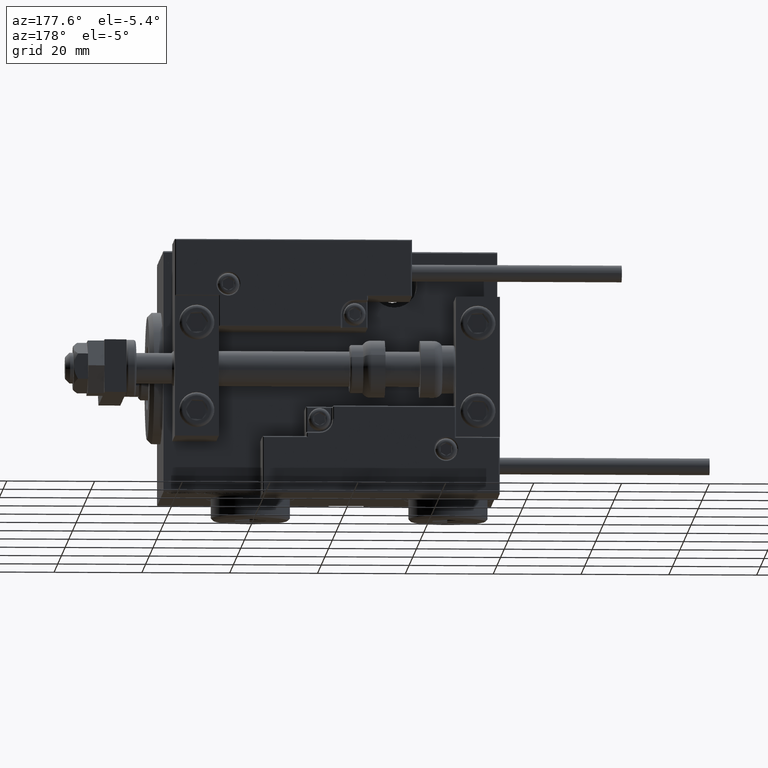
[diagram: clean part render]
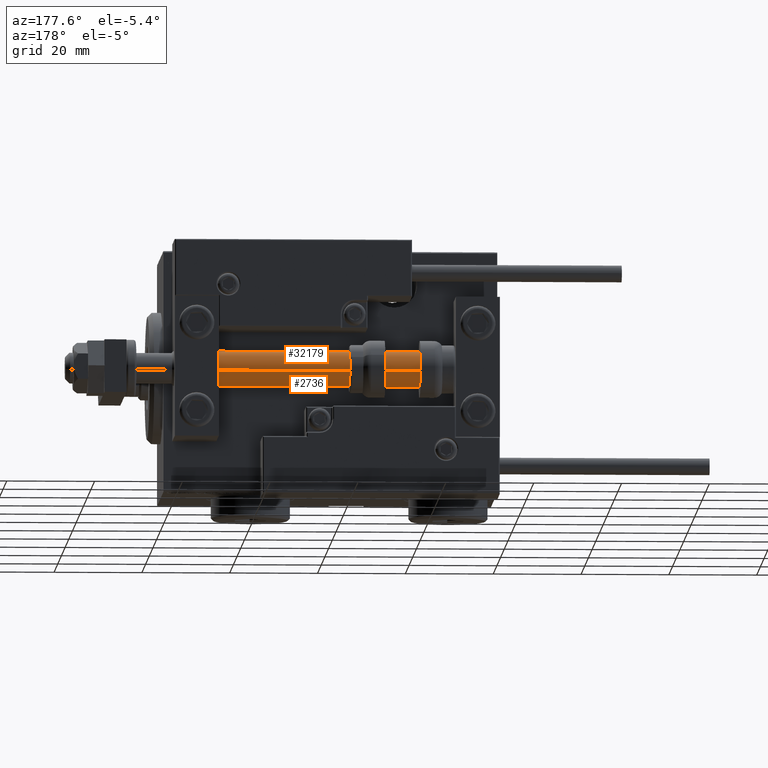
[diagram: same view with one multi-face feature highlighted, each face labeled with its STEP entity id]
A machine part, auxiliary view. The highlighted faces form ONE feature: a constant-radius fillet chain: 2 tangent blend faces with common blend radius 4 mm. The faces share edges in the B-rep.
Their STEP definitions:
[1] entity #2736 (Cylinder):
#1727 = CARTESIAN_POINT ( 'NONE',  ( -4.000000000000000000, 0.000000000000000000, 2.000000000000029310 ) ) ;
#1977 = AXIS2_PLACEMENT_3D ( 'NONE', #37388, #17371, #21786 ) ;
#2736 = ADVANCED_FACE ( 'NONE', ( #32961 ), #44948, .T. ) ;
#4570 = LINE ( 'NONE', #44360, #45676 ) ;
#5890 = DIRECTION ( 'NONE',  ( 1.000000000000000000, 0.000000000000000000, 0.000000000000000000 ) ) ;
#7138 = EDGE_CURVE ( 'NONE', #17571, #49747, #49750, .T. ) ;
#7779 = CIRCLE ( 'NONE', #14421, 4.000000000000000000 ) ;
#12201 = DIRECTION ( 'NONE',  ( 0.000000000000000000, 0.000000000000000000, 1.000000000000000000 ) ) ;
#13492 = AXIS2_PLACEMENT_3D ( 'NONE', #21497, #25668, #5890 ) ;
#14421 = AXIS2_PLACEMENT_3D ( 'NONE', #37994, #12201, #16099 ) ;
#16099 = DIRECTION ( 'NONE',  ( 1.000000000000000000, 0.000000000000000000, 0.000000000000000000 ) ) ;
#17371 = DIRECTION ( 'NONE',  ( -0.000000000000000000, -0.000000000000000000, -1.000000000000000000 ) ) ;
#17571 = VERTEX_POINT ( 'NONE', #22757 ) ;
#21497 = CARTESIAN_POINT ( 'NONE',  ( 0.000000000000000000, 0.000000000000000000, 2.000000000000029310 ) ) ;
#21631 = EDGE_CURVE ( 'NONE', #41066, #30974, #4570, .T. ) ;
#21786 = DIRECTION ( 'NONE',  ( -1.000000000000000000, 0.000000000000000000, 0.000000000000000000 ) ) ;
#22757 = CARTESIAN_POINT ( 'NONE',  ( -4.000000000000000000, 0.000000000000000000, 76.00000000000000000 ) ) ;
#25668 = DIRECTION ( 'NONE',  ( -0.000000000000000000, -0.000000000000000000, 1.000000000000000000 ) ) ;
#26300 = ORIENTED_EDGE ( 'NONE', *, *, #7138, .F. ) ;
#28530 = EDGE_CURVE ( 'NONE', #30974, #49747, #35931, .T. ) ;
#29739 = ORIENTED_EDGE ( 'NONE', *, *, #28530, .T. ) ;
#30216 = VECTOR ( 'NONE', #42440, 1000.000000000000000 ) ;
#30974 = VERTEX_POINT ( 'NONE', #38150 ) ;
#32961 = FACE_OUTER_BOUND ( 'NONE', #40140, .T. ) ;
#33865 = ORIENTED_EDGE ( 'NONE', *, *, #21631, .T. ) ;
#35101 = CARTESIAN_POINT ( 'NONE',  ( 4.000000000000000000, 4.898587196589412829E-16, 76.00000000000000000 ) ) ;
#35931 = CIRCLE ( 'NONE', #13492, 4.000000000000000000 ) ;
#36493 = ORIENTED_EDGE ( 'NONE', *, *, #48416, .F. ) ;
#37388 = CARTESIAN_POINT ( 'NONE',  ( 0.000000000000000000, 0.000000000000000000, 76.00000000000000000 ) ) ;
#37994 = CARTESIAN_POINT ( 'NONE',  ( 0.000000000000000000, 0.000000000000000000, 76.00000000000000000 ) ) ;
#38150 = CARTESIAN_POINT ( 'NONE',  ( 4.000000000000000000, 4.898587196589412829E-16, 2.000000000000029310 ) ) ;
#39173 = DIRECTION ( 'NONE',  ( -0.000000000000000000, -0.000000000000000000, -1.000000000000000000 ) ) ;
#40140 = EDGE_LOOP ( 'NONE', ( #36493, #33865, #29739, #26300 ) ) ;
#41066 = VERTEX_POINT ( 'NONE', #35101 ) ;
#41416 = CARTESIAN_POINT ( 'NONE',  ( -4.000000000000000000, 0.000000000000000000, 76.00000000000000000 ) ) ;
#42440 = DIRECTION ( 'NONE',  ( -0.000000000000000000, -0.000000000000000000, -1.000000000000000000 ) ) ;
#44360 = CARTESIAN_POINT ( 'NONE',  ( 4.000000000000000000, 4.898587196589412829E-16, 76.00000000000000000 ) ) ;
#44948 = CYLINDRICAL_SURFACE ( 'NONE', #1977, 4.000000000000000000 ) ;
#45676 = VECTOR ( 'NONE', #39173, 1000.000000000000000 ) ;
#48416 = EDGE_CURVE ( 'NONE', #41066, #17571, #7779, .T. ) ;
#49747 = VERTEX_POINT ( 'NONE', #1727 ) ;
#49750 = LINE ( 'NONE', #41416, #30216 ) ;
[2] entity #32179 (Cylinder):
#399 = EDGE_CURVE ( 'NONE', #17571, #41066, #8535, .T. ) ;
#1727 = CARTESIAN_POINT ( 'NONE',  ( -4.000000000000000000, 0.000000000000000000, 2.000000000000029310 ) ) ;
#2732 = AXIS2_PLACEMENT_3D ( 'NONE', #16683, #25277, #36459 ) ;
#4570 = LINE ( 'NONE', #44360, #45676 ) ;
#5573 = ORIENTED_EDGE ( 'NONE', *, *, #21631, .F. ) ;
#5592 = DIRECTION ( 'NONE',  ( -0.000000000000000000, -0.000000000000000000, -1.000000000000000000 ) ) ;
#7138 = EDGE_CURVE ( 'NONE', #17571, #49747, #49750, .T. ) ;
#8535 = CIRCLE ( 'NONE', #2732, 4.000000000000000000 ) ;
#9711 = DIRECTION ( 'NONE',  ( 1.000000000000000000, 0.000000000000000000, 0.000000000000000000 ) ) ;
#10970 = AXIS2_PLACEMENT_3D ( 'NONE', #21422, #17520, #9711 ) ;
#16683 = CARTESIAN_POINT ( 'NONE',  ( 0.000000000000000000, 0.000000000000000000, 76.00000000000000000 ) ) ;
#17520 = DIRECTION ( 'NONE',  ( -0.000000000000000000, -0.000000000000000000, 1.000000000000000000 ) ) ;
#17571 = VERTEX_POINT ( 'NONE', #22757 ) ;
#21422 = CARTESIAN_POINT ( 'NONE',  ( 0.000000000000000000, 0.000000000000000000, 2.000000000000029310 ) ) ;
#21631 = EDGE_CURVE ( 'NONE', #41066, #30974, #4570, .T. ) ;
#22757 = CARTESIAN_POINT ( 'NONE',  ( -4.000000000000000000, 0.000000000000000000, 76.00000000000000000 ) ) ;
#22843 = EDGE_LOOP ( 'NONE', ( #5573, #30622, #23232, #38050 ) ) ;
#23232 = ORIENTED_EDGE ( 'NONE', *, *, #7138, .T. ) ;
#24279 = CIRCLE ( 'NONE', #10970, 4.000000000000000000 ) ;
#24597 = CYLINDRICAL_SURFACE ( 'NONE', #40240, 4.000000000000000000 ) ;
#25277 = DIRECTION ( 'NONE',  ( 0.000000000000000000, 0.000000000000000000, 1.000000000000000000 ) ) ;
#25628 = DIRECTION ( 'NONE',  ( -1.000000000000000000, 0.000000000000000000, 0.000000000000000000 ) ) ;
#27403 = EDGE_CURVE ( 'NONE', #49747, #30974, #24279, .T. ) ;
#29522 = FACE_OUTER_BOUND ( 'NONE', #22843, .T. ) ;
#30216 = VECTOR ( 'NONE', #42440, 1000.000000000000000 ) ;
#30622 = ORIENTED_EDGE ( 'NONE', *, *, #399, .F. ) ;
#30974 = VERTEX_POINT ( 'NONE', #38150 ) ;
#32179 = ADVANCED_FACE ( 'NONE', ( #29522 ), #24597, .T. ) ;
#35101 = CARTESIAN_POINT ( 'NONE',  ( 4.000000000000000000, 4.898587196589412829E-16, 76.00000000000000000 ) ) ;
#36459 = DIRECTION ( 'NONE',  ( 1.000000000000000000, 0.000000000000000000, 0.000000000000000000 ) ) ;
#38050 = ORIENTED_EDGE ( 'NONE', *, *, #27403, .T. ) ;
#38150 = CARTESIAN_POINT ( 'NONE',  ( 4.000000000000000000, 4.898587196589412829E-16, 2.000000000000029310 ) ) ;
#39173 = DIRECTION ( 'NONE',  ( -0.000000000000000000, -0.000000000000000000, -1.000000000000000000 ) ) ;
#40240 = AXIS2_PLACEMENT_3D ( 'NONE', #48534, #5592, #25628 ) ;
#41066 = VERTEX_POINT ( 'NONE', #35101 ) ;
#41416 = CARTESIAN_POINT ( 'NONE',  ( -4.000000000000000000, 0.000000000000000000, 76.00000000000000000 ) ) ;
#42440 = DIRECTION ( 'NONE',  ( -0.000000000000000000, -0.000000000000000000, -1.000000000000000000 ) ) ;
#44360 = CARTESIAN_POINT ( 'NONE',  ( 4.000000000000000000, 4.898587196589412829E-16, 76.00000000000000000 ) ) ;
#45676 = VECTOR ( 'NONE', #39173, 1000.000000000000000 ) ;
#48534 = CARTESIAN_POINT ( 'NONE',  ( 0.000000000000000000, 0.000000000000000000, 76.00000000000000000 ) ) ;
#49747 = VERTEX_POINT ( 'NONE', #1727 ) ;
#49750 = LINE ( 'NONE', #41416, #30216 ) ;